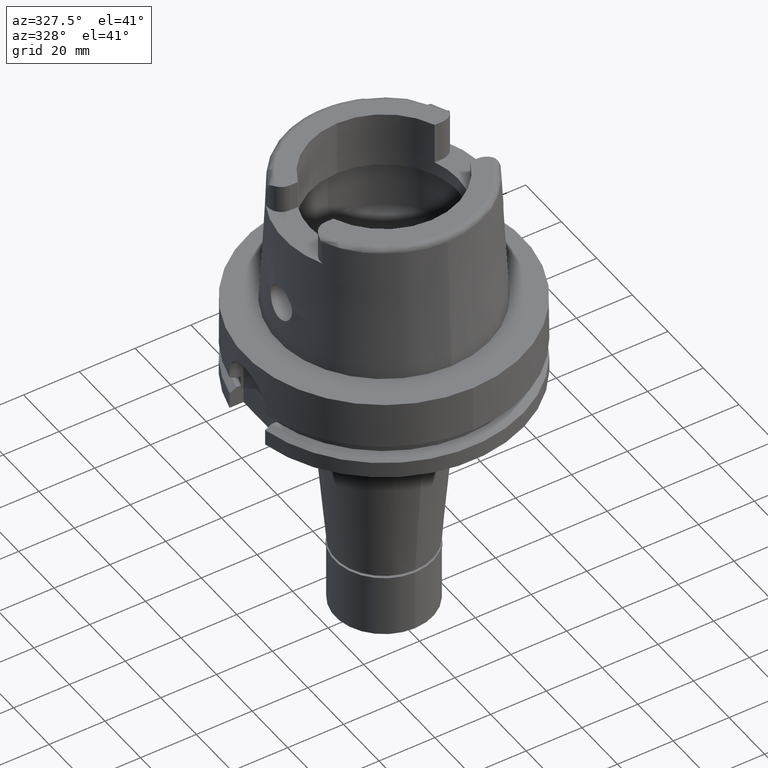
[diagram: clean part render]
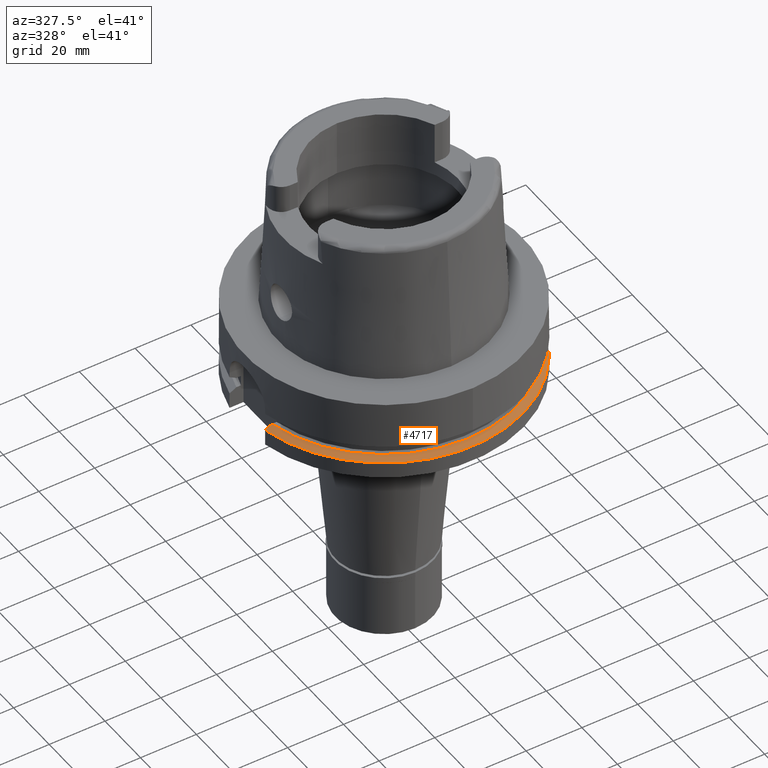
[diagram: same view with one face highlighted and labeled with its STEP entity id]
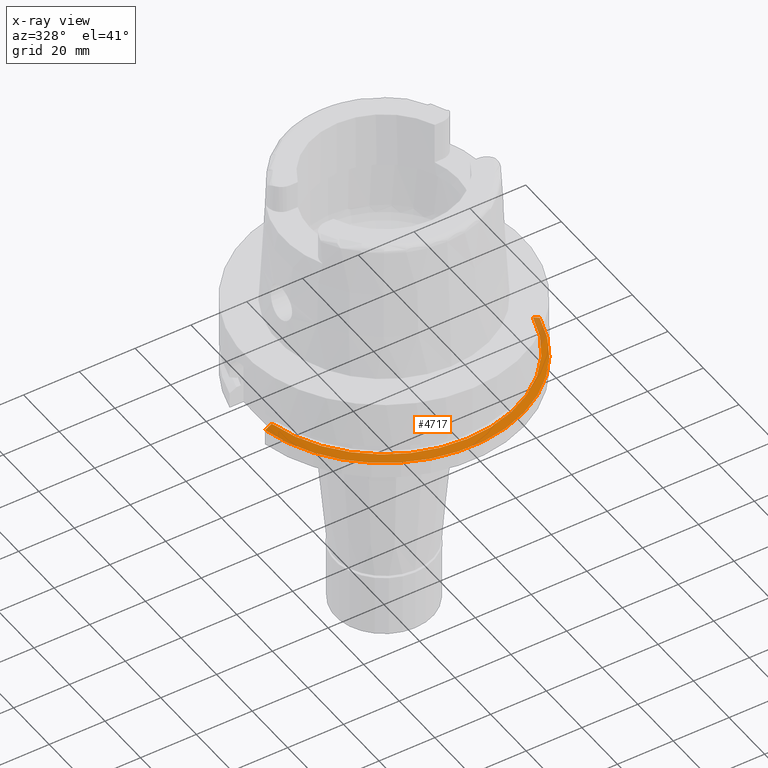
[diagram: x-ray of the same camera — body ghosted, the highlighted face saturated]
A machine part, auxiliary view. The second image highlights one B-rep face of the part: STEP entity #4717.
The next image is the same camera in x-ray: the body ghosted, the highlighted face saturated — about 5% of this face is hidden behind the body in this view.
In plain terms, the highlighted conical surface has half-angle 60 deg.
Its self-contained STEP definition (entity closure, byte-faithful):
#107 = VERTEX_POINT ( 'NONE', #4201 ) ;
#180 = CARTESIAN_POINT ( 'NONE',  ( -46.83084020607000042, -10.00000000000000000, -22.02741066863000086 ) ) ;
#217 = DIRECTION ( 'NONE',  ( 0.0000000000000000000, 0.0000000000000000000, -1.000000000000000000 ) ) ;
#398 = CIRCLE ( 'NONE', #1113, 47.62259526418999656 ) ;
#405 = AXIS2_PLACEMENT_3D ( 'NONE', #587, #217, #2334 ) ;
#407 = CARTESIAN_POINT ( 'NONE',  ( 46.33477721644000269, -11.00000000000000000, -21.87500000000000000 ) ) ;
#415 = CARTESIAN_POINT ( 'NONE',  ( -48.98979485565999425, -10.00000000000000000, -23.24759526419000011 ) ) ;
#461 = DIRECTION ( 'NONE',  ( 0.0000000000000000000, -1.000000000000000000, 0.0000000000000000000 ) ) ;
#587 = CARTESIAN_POINT ( 'NONE',  ( 0.0000000000000000000, 0.0000000000000000000, -23.24759526419000011 ) ) ;
#678 = CARTESIAN_POINT ( 'NONE',  ( 46.33477721644000269, -11.00000000000000000, -21.87500000000000000 ) ) ;
#711 = CARTESIAN_POINT ( 'NONE',  ( 47.96191616323000062, -11.00000000000000000, -22.78979543230000004 ) ) ;
#907 = ORIENTED_EDGE ( 'NONE', *, *, #1734, .F. ) ;
#1012 = CARTESIAN_POINT ( 'NONE',  ( 46.60605711264999940, -11.00000000000000000, -22.02738808210999721 ) ) ;
#1113 = AXIS2_PLACEMENT_3D ( 'NONE', #4893, #2366, #4465 ) ;
#1299 = DIRECTION ( 'NONE',  ( 0.0000000000000000000, 0.0000000000000000000, -1.000000000000000000 ) ) ;
#1734 = EDGE_CURVE ( 'NONE', #2976, #3251, #3588, .T. ) ;
#2118 = AXIS2_PLACEMENT_3D ( 'NONE', #4810, #1299, #461 ) ;
#2334 = DIRECTION ( 'NONE',  ( 0.9754998718605770724, -0.2199999999999950051, 0.0000000000000000000 ) ) ;
#2366 = DIRECTION ( 'NONE',  ( 0.0000000000000000000, 0.0000000000000000000, -1.000000000000000000 ) ) ;
#2376 = CONICAL_SURFACE ( 'NONE', #2118, 48.81129763208999606, 1.047197551196400456 ) ;
#2479 = CARTESIAN_POINT ( 'NONE',  ( -48.98979485565999425, -10.00000000000000000, -23.24759526419000011 ) ) ;
#2555 = B_SPLINE_CURVE_WITH_KNOTS ( 'NONE', 3,
 ( #415, #3846, #5570, #2594, #180, #4907 ),
 .UNSPECIFIED., .F., .F.,
 ( 4, 1, 1, 4 ),
 ( 0.0000000000000000000, 0.3333333333333000081, 0.6666666666667000474, 1.000000000000000000 ),
 .UNSPECIFIED. ) ;
#2594 = CARTESIAN_POINT ( 'NONE',  ( -47.37076227628000424, -10.00000000000000000, -22.33230648793000128 ) ) ;
#2717 = ORIENTED_EDGE ( 'NONE', *, *, #4787, .T. ) ;
#2772 = CARTESIAN_POINT ( 'NONE',  ( 47.14851446811000102, -11.00000000000000000, -22.33225649733000040 ) ) ;
#2976 = VERTEX_POINT ( 'NONE', #407 ) ;
#3077 = CARTESIAN_POINT ( 'NONE',  ( 48.77499359303000404, -11.00000000000000000, -23.24759526419000011 ) ) ;
#3251 = VERTEX_POINT ( 'NONE', #3077 ) ;
#3406 = EDGE_LOOP ( 'NONE', ( #4263, #5137, #907, #2717 ) ) ;
#3588 = B_SPLINE_CURVE_WITH_KNOTS ( 'NONE', 3,
 ( #678, #1012, #2772, #711, #4463, #4948 ),
 .UNSPECIFIED., .F., .F.,
 ( 4, 1, 1, 4 ),
 ( 0.0000000000000000000, 0.3333333333333000081, 0.6666666666667000474, 1.000000000000000000 ),
 .UNSPECIFIED. ) ;
#3619 = EDGE_CURVE ( 'NONE', #4328, #107, #2555, .T. ) ;
#3846 = CARTESIAN_POINT ( 'NONE',  ( -48.72002593965999750, -10.00000000000000000, -23.09499092030999989 ) ) ;
#4201 = CARTESIAN_POINT ( 'NONE',  ( -46.56083740329999898, -10.00000000000000000, -21.87500000000000000 ) ) ;
#4263 = ORIENTED_EDGE ( 'NONE', *, *, #3619, .F. ) ;
#4328 = VERTEX_POINT ( 'NONE', #2479 ) ;
#4463 = CARTESIAN_POINT ( 'NONE',  ( 48.50399904748000068, -11.00000000000000000, -23.09496975037999889 ) ) ;
#4465 = DIRECTION ( 'NONE',  ( 0.0000000000000000000, -1.000000000000000000, 0.0000000000000000000 ) ) ;
#4717 = ADVANCED_FACE ( 'NONE', ( #4784 ), #2376, .T. ) ;
#4784 = FACE_OUTER_BOUND ( 'NONE', #3406, .T. ) ;
#4787 = EDGE_CURVE ( 'NONE', #2976, #107, #398, .T. ) ;
#4810 = CARTESIAN_POINT ( 'NONE',  ( 0.0000000000000000000, 0.0000000000000000000, -22.56129763209999695 ) ) ;
#4893 = CARTESIAN_POINT ( 'NONE',  ( 0.0000000000000000000, 0.0000000000000000000, -21.87500000000000000 ) ) ;
#4907 = CARTESIAN_POINT ( 'NONE',  ( -46.56083740329999898, -10.00000000000000000, -21.87500000000000000 ) ) ;
#4948 = CARTESIAN_POINT ( 'NONE',  ( 48.77499359303000404, -11.00000000000000000, -23.24759526419000011 ) ) ;
#5137 = ORIENTED_EDGE ( 'NONE', *, *, #5163, .F. ) ;
#5163 = EDGE_CURVE ( 'NONE', #3251, #4328, #5430, .T. ) ;
#5430 = CIRCLE ( 'NONE', #405, 50.00000000000000711 ) ;
#5570 = CARTESIAN_POINT ( 'NONE',  ( -48.18041161677000161, -10.00000000000000000, -22.78984413388999997 ) ) ;